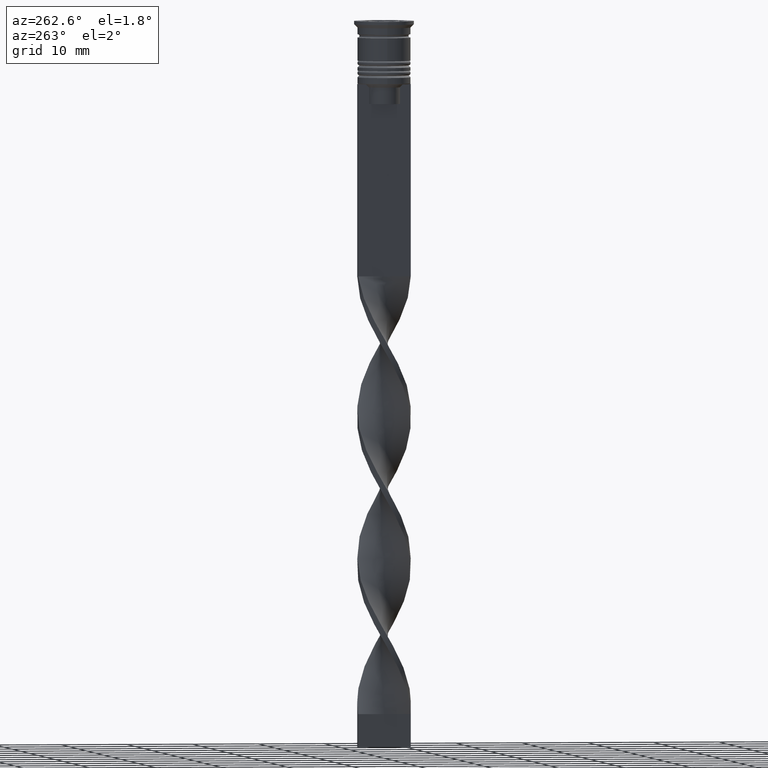
[diagram: clean part render]
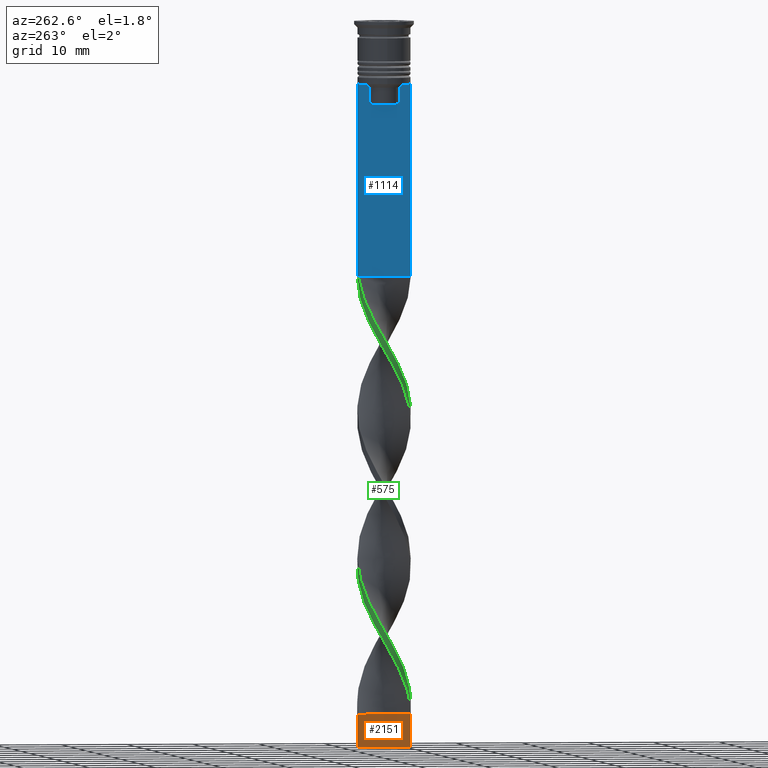
[diagram: same view with three faces highlighted in distinct colors, each labeled with its STEP entity id]
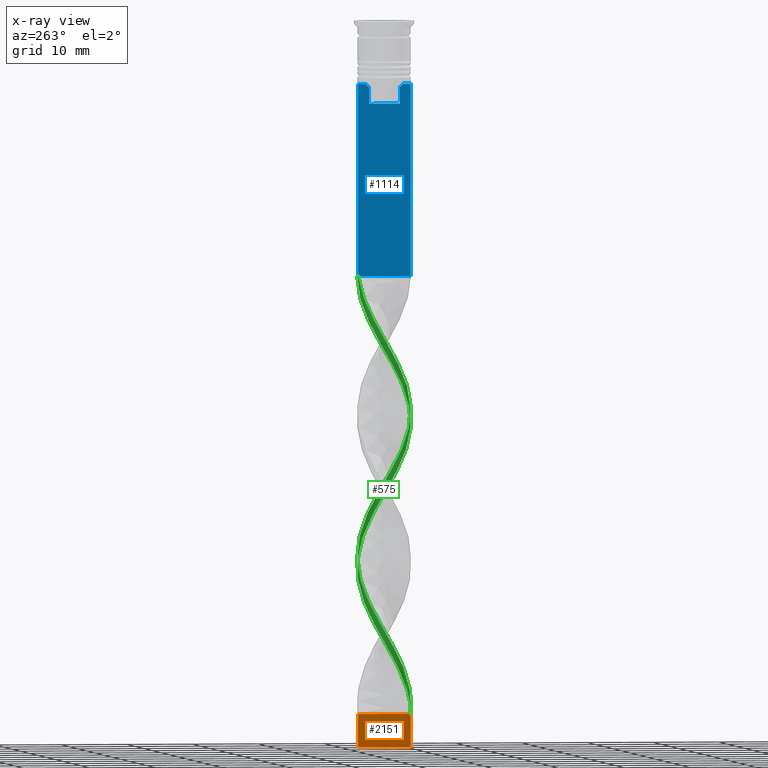
[diagram: x-ray of the same camera — body ghosted, the three highlighted faces saturated]
A machine part, auxiliary view with three faces highlighted in distinct colors.
The next image is the same camera in x-ray (body ghosted, the three faces saturated) — at least one of them is partly hidden behind the body in this view.
Their STEP definitions:

[orange] entity #2151 — the highlighted planar face has unit normal (1, -0, 0).
#92 = CARTESIAN_POINT ( 'NONE',  ( -0.5000000000000005551, -4.000000000000000000, -104.5000000000000142 ) ) ;
#213 = VERTEX_POINT ( 'NONE', #1996 ) ;
#265 = ORIENTED_EDGE ( 'NONE', *, *, #1431, .F. ) ;
#307 = VERTEX_POINT ( 'NONE', #2828 ) ;
#309 = CARTESIAN_POINT ( 'NONE',  ( -0.4999999999999994449, 4.000000000000000000, -104.5000000000000142 ) ) ;
#320 = VERTEX_POINT ( 'NONE', #542 ) ;
#396 = VECTOR ( 'NONE', #2106, 1000.000000000000000 ) ;
#431 = EDGE_LOOP ( 'NONE', ( #608, #265, #2215, #1903 ) ) ;
#542 = CARTESIAN_POINT ( 'NONE',  ( -0.5000000000000005551, -4.000000000000000000, -109.5000000000000142 ) ) ;
#588 = CARTESIAN_POINT ( 'NONE',  ( -0.4999999999999994449, 4.000000000000000000, -109.5000000000000142 ) ) ;
#608 = ORIENTED_EDGE ( 'NONE', *, *, #2924, .T. ) ;
#787 = DIRECTION ( 'NONE',  ( 1.355252715606880543E-16, 1.000000000000000000, 0.000000000000000000 ) ) ;
#1028 = B_SPLINE_CURVE_WITH_KNOTS ( 'NONE', 3,
 ( #92, #1479, #3434, #309 ),
 .UNSPECIFIED., .F., .F.,
 ( 4, 4 ),
 ( 0.000000000000000000, 1.000000000000000000 ),
 .UNSPECIFIED. ) ;
#1038 = CARTESIAN_POINT ( 'NONE',  ( -0.5000000000000005551, -4.000000000000000000, -109.5000000000000142 ) ) ;
#1166 = LINE ( 'NONE', #588, #2837 ) ;
#1269 = EDGE_CURVE ( 'NONE', #320, #2226, #3398, .T. ) ;
#1347 = FACE_OUTER_BOUND ( 'NONE', #431, .T. ) ;
#1431 = EDGE_CURVE ( 'NONE', #2226, #213, #1166, .T. ) ;
#1479 = CARTESIAN_POINT ( 'NONE',  ( -0.5000000000000002220, -1.333333333333333481, -104.5000000000000142 ) ) ;
#1697 = DIRECTION ( 'NONE',  ( -0.000000000000000000, -0.000000000000000000, 1.000000000000000000 ) ) ;
#1732 = AXIS2_PLACEMENT_3D ( 'NONE', #1038, #1915, #787 ) ;
#1903 = ORIENTED_EDGE ( 'NONE', *, *, #3092, .T. ) ;
#1915 = DIRECTION ( 'NONE',  ( 1.000000000000000000, -1.355252715606880543E-16, 0.000000000000000000 ) ) ;
#1996 = CARTESIAN_POINT ( 'NONE',  ( -0.4999999999999994449, 4.000000000000000000, -104.5000000000000142 ) ) ;
#2106 = DIRECTION ( 'NONE',  ( -0.000000000000000000, -0.000000000000000000, 1.000000000000000000 ) ) ;
#2151 = ADVANCED_FACE ( 'NONE', ( #1347 ), #2224, .F. ) ;
#2215 = ORIENTED_EDGE ( 'NONE', *, *, #1269, .F. ) ;
#2224 = PLANE ( 'NONE',  #1732 ) ;
#2226 = VERTEX_POINT ( 'NONE', #2738 ) ;
#2291 = DIRECTION ( 'NONE',  ( 1.355252715606880543E-16, 1.000000000000000000, 0.000000000000000000 ) ) ;
#2388 = LINE ( 'NONE', #3210, #396 ) ;
#2738 = CARTESIAN_POINT ( 'NONE',  ( -0.4999999999999994449, 4.000000000000000000, -109.5000000000000142 ) ) ;
#2828 = CARTESIAN_POINT ( 'NONE',  ( -0.5000000000000005551, -4.000000000000000000, -104.5000000000000142 ) ) ;
#2837 = VECTOR ( 'NONE', #1697, 1000.000000000000000 ) ;
#2924 = EDGE_CURVE ( 'NONE', #307, #213, #1028, .T. ) ;
#3086 = VECTOR ( 'NONE', #2291, 1000.000000000000000 ) ;
#3092 = EDGE_CURVE ( 'NONE', #320, #307, #2388, .T. ) ;
#3210 = CARTESIAN_POINT ( 'NONE',  ( -0.5000000000000005551, -4.000000000000000000, -109.5000000000000142 ) ) ;
#3398 = LINE ( 'NONE', #3451, #3086 ) ;
#3434 = CARTESIAN_POINT ( 'NONE',  ( -0.4999999999999997780, 1.333333333333333481, -104.5000000000000142 ) ) ;
#3451 = CARTESIAN_POINT ( 'NONE',  ( -0.5000000000000005551, -4.000000000000000000, -109.5000000000000142 ) ) ;

[blue] entity #1114 — the highlighted planar face has unit normal (-1, 0, 0).
#57 = LINE ( 'NONE', #852, #1478 ) ;
#59 = DIRECTION ( 'NONE',  ( 0.000000000000000000, 0.000000000000000000, -1.000000000000000000 ) ) ;
#88 = CARTESIAN_POINT ( 'NONE',  ( -0.5000000000000000000, -2.517408374291112416, -9.833662228483172285 ) ) ;
#103 = VERTEX_POINT ( 'NONE', #2762 ) ;
#154 = CARTESIAN_POINT ( 'NONE',  ( -0.5000000000000000000, -4.000000000000000000, -38.50000000000000000 ) ) ;
#343 = LINE ( 'NONE', #1416, #3588 ) ;
#403 = CARTESIAN_POINT ( 'NONE',  ( -0.5000000000000000000, -4.000000000000000000, -9.500000000000000000 ) ) ;
#423 = VERTEX_POINT ( 'NONE', #2054 ) ;
#425 = EDGE_CURVE ( 'NONE', #3550, #3401, #995, .T. ) ;
#429 = DIRECTION ( 'NONE',  ( 0.000000000000000000, -1.000000000000000000, 0.000000000000000000 ) ) ;
#432 = VECTOR ( 'NONE', #2591, 1000.000000000000000 ) ;
#497 = EDGE_CURVE ( 'NONE', #1746, #423, #2191, .T. ) ;
#527 = CARTESIAN_POINT ( 'NONE',  ( -0.5000000000000000000, -4.000000000000000000, -1.437742251701450202 ) ) ;
#567 = ORIENTED_EDGE ( 'NONE', *, *, #1317, .F. ) ;
#590 = DIRECTION ( 'NONE',  ( 0.000000000000000000, 0.000000000000000000, -1.000000000000000000 ) ) ;
#609 = DIRECTION ( 'NONE',  ( -0.000000000000000000, -0.000000000000000000, 1.000000000000000000 ) ) ;
#624 = EDGE_CURVE ( 'NONE', #1508, #1492, #2433, .T. ) ;
#629 = LINE ( 'NONE', #2324, #1308 ) ;
#632 = CARTESIAN_POINT ( 'NONE',  ( -0.5000000000000000000, -2.856571371417138572, -9.500000000000000000 ) ) ;
#637 = CARTESIAN_POINT ( 'NONE',  ( -0.5000000000000000000, 4.000000000000000000, -1.437742251701450202 ) ) ;
#673 = CARTESIAN_POINT ( 'NONE',  ( -0.5000000000000000000, -4.000000000000000000, -9.500000000000000000 ) ) ;
#769 = EDGE_LOOP ( 'NONE', ( #2061, #567, #1808, #2295, #3596, #2302, #1318, #1019, #3074, #1956, #1219, #2117 ) ) ;
#798 = VERTEX_POINT ( 'NONE', #1968 ) ;
#828 = EDGE_CURVE ( 'NONE', #3112, #1492, #1463, .T. ) ;
#852 = CARTESIAN_POINT ( 'NONE',  ( -0.5000000000000000000, -4.000000000000000000, -9.500000000000000000 ) ) ;
#904 = CARTESIAN_POINT ( 'NONE',  ( -0.5000000000000000000, -2.347338918861097135, -10.00000000000000000 ) ) ;
#941 = CARTESIAN_POINT ( 'NONE',  ( -0.5000000000000000000, 2.856571371417138572, -9.500000000000000000 ) ) ;
#971 = VERTEX_POINT ( 'NONE', #2059 ) ;
#995 = B_SPLINE_CURVE_WITH_KNOTS ( 'NONE', 3,
 ( #904, #88, #1170, #632 ),
 .UNSPECIFIED., .F., .F.,
 ( 4, 4 ),
 ( 0.01178336557230038641, 0.01249758354768160454 ),
 .UNSPECIFIED. ) ;
#1016 = FACE_OUTER_BOUND ( 'NONE', #769, .T. ) ;
#1019 = ORIENTED_EDGE ( 'NONE', *, *, #3143, .F. ) ;
#1114 = ADVANCED_FACE ( 'NONE', ( #1016 ), #2144, .T. ) ;
#1170 = CARTESIAN_POINT ( 'NONE',  ( -0.5000000000000000000, -2.687095498514037839, -9.666937905752043037 ) ) ;
#1174 = AXIS2_PLACEMENT_3D ( 'NONE', #527, #2182, #2741 ) ;
#1201 = VECTOR ( 'NONE', #2965, 1000.000000000000000 ) ;
#1210 = CARTESIAN_POINT ( 'NONE',  ( -0.5000000000000000000, 2.347338918861097135, -10.00000000000000000 ) ) ;
#1218 = CARTESIAN_POINT ( 'NONE',  ( -0.5000000000000000000, 2.399999999999996803, -12.50000000000000000 ) ) ;
#1219 = ORIENTED_EDGE ( 'NONE', *, *, #2536, .F. ) ;
#1231 = LINE ( 'NONE', #403, #1804 ) ;
#1308 = VECTOR ( 'NONE', #429, 1000.000000000000000 ) ;
#1317 = EDGE_CURVE ( 'NONE', #2416, #1746, #57, .T. ) ;
#1318 = ORIENTED_EDGE ( 'NONE', *, *, #1586, .F. ) ;
#1376 = CARTESIAN_POINT ( 'NONE',  ( -0.5000000000000000000, 4.000000000000000000, -38.50000000000000000 ) ) ;
#1403 = CARTESIAN_POINT ( 'NONE',  ( -0.5000000000000000000, 2.347338918861097135, 0.000000000000000000 ) ) ;
#1413 = CARTESIAN_POINT ( 'NONE',  ( -0.5000000000000000000, -2.347338918861097135, 0.000000000000000000 ) ) ;
#1416 = CARTESIAN_POINT ( 'NONE',  ( -0.5000000000000000000, -4.000000000000000000, -1.437742251701450202 ) ) ;
#1427 = LINE ( 'NONE', #1218, #3345 ) ;
#1455 = EDGE_CURVE ( 'NONE', #103, #3550, #2824, .T. ) ;
#1463 = LINE ( 'NONE', #637, #432 ) ;
#1478 = VECTOR ( 'NONE', #3174, 1000.000000000000000 ) ;
#1492 = VERTEX_POINT ( 'NONE', #1376 ) ;
#1508 = VERTEX_POINT ( 'NONE', #3219 ) ;
#1586 = EDGE_CURVE ( 'NONE', #971, #2832, #629, .T. ) ;
#1596 = CARTESIAN_POINT ( 'NONE',  ( -0.5000000000000000000, -4.000000000000000000, -9.500000000000000000 ) ) ;
#1746 = VERTEX_POINT ( 'NONE', #2437 ) ;
#1804 = VECTOR ( 'NONE', #2980, 1000.000000000000000 ) ;
#1808 = ORIENTED_EDGE ( 'NONE', *, *, #2810, .F. ) ;
#1898 = VECTOR ( 'NONE', #609, 1000.000000000000000 ) ;
#1956 = ORIENTED_EDGE ( 'NONE', *, *, #1455, .F. ) ;
#1968 = CARTESIAN_POINT ( 'NONE',  ( -0.5000000000000000000, 2.347338918861097135, -12.50000000000000000 ) ) ;
#2023 = DIRECTION ( 'NONE',  ( 0.000000000000000000, -1.000000000000000000, 0.000000000000000000 ) ) ;
#2054 = CARTESIAN_POINT ( 'NONE',  ( -0.5000000000000000000, 2.347338918861097135, -10.00000000000000000 ) ) ;
#2059 = CARTESIAN_POINT ( 'NONE',  ( -0.5000000000000000000, -3.867815921162741422, -9.500000000000000000 ) ) ;
#2061 = ORIENTED_EDGE ( 'NONE', *, *, #497, .F. ) ;
#2111 = LINE ( 'NONE', #673, #1201 ) ;
#2117 = ORIENTED_EDGE ( 'NONE', *, *, #2896, .F. ) ;
#2144 = PLANE ( 'NONE',  #1174 ) ;
#2150 = VECTOR ( 'NONE', #59, 1000.000000000000000 ) ;
#2182 = DIRECTION ( 'NONE',  ( -1.000000000000000000, 0.000000000000000000, 0.000000000000000000 ) ) ;
#2191 = B_SPLINE_CURVE_WITH_KNOTS ( 'NONE', 3,
 ( #941, #3241, #2919, #1210 ),
 .UNSPECIFIED., .F., .F.,
 ( 4, 4 ),
 ( 0.004956812174141195064, 0.005670477137898153989 ),
 .UNSPECIFIED. ) ;
#2271 = CARTESIAN_POINT ( 'NONE',  ( -0.5000000000000000000, -2.856571371417138572, -9.500000000000000000 ) ) ;
#2295 = ORIENTED_EDGE ( 'NONE', *, *, #828, .T. ) ;
#2302 = ORIENTED_EDGE ( 'NONE', *, *, #3481, .F. ) ;
#2324 = CARTESIAN_POINT ( 'NONE',  ( -0.5000000000000000000, -4.000000000000000000, -9.500000000000000000 ) ) ;
#2416 = VERTEX_POINT ( 'NONE', #2547 ) ;
#2433 = LINE ( 'NONE', #154, #2435 ) ;
#2435 = VECTOR ( 'NONE', #3270, 1000.000000000000000 ) ;
#2437 = CARTESIAN_POINT ( 'NONE',  ( -0.5000000000000000000, 2.856571371417138572, -9.500000000000000000 ) ) ;
#2536 = EDGE_CURVE ( 'NONE', #798, #103, #1427, .T. ) ;
#2547 = CARTESIAN_POINT ( 'NONE',  ( -0.5000000000000000000, 3.867815921162741422, -9.500000000000000000 ) ) ;
#2591 = DIRECTION ( 'NONE',  ( 0.000000000000000000, 0.000000000000000000, -1.000000000000000000 ) ) ;
#2741 = DIRECTION ( 'NONE',  ( 0.000000000000000000, 0.000000000000000000, 1.000000000000000000 ) ) ;
#2762 = CARTESIAN_POINT ( 'NONE',  ( -0.5000000000000000000, -2.347338918861097135, -12.50000000000000000 ) ) ;
#2810 = EDGE_CURVE ( 'NONE', #3112, #2416, #2111, .T. ) ;
#2824 = LINE ( 'NONE', #1413, #1898 ) ;
#2831 = LINE ( 'NONE', #1403, #2150 ) ;
#2832 = VERTEX_POINT ( 'NONE', #1596 ) ;
#2896 = EDGE_CURVE ( 'NONE', #423, #798, #2831, .T. ) ;
#2919 = CARTESIAN_POINT ( 'NONE',  ( -0.5000000000000000000, 2.517407211010871393, -9.833663366238582171 ) ) ;
#2923 = CARTESIAN_POINT ( 'NONE',  ( -0.5000000000000000000, 4.000000000000000000, -9.500000000000000000 ) ) ;
#2965 = DIRECTION ( 'NONE',  ( 0.000000000000000000, -1.000000000000000000, 0.000000000000000000 ) ) ;
#2980 = DIRECTION ( 'NONE',  ( 0.000000000000000000, -1.000000000000000000, 0.000000000000000000 ) ) ;
#3074 = ORIENTED_EDGE ( 'NONE', *, *, #425, .F. ) ;
#3112 = VERTEX_POINT ( 'NONE', #2923 ) ;
#3143 = EDGE_CURVE ( 'NONE', #3401, #971, #1231, .T. ) ;
#3174 = DIRECTION ( 'NONE',  ( 0.000000000000000000, -1.000000000000000000, 0.000000000000000000 ) ) ;
#3219 = CARTESIAN_POINT ( 'NONE',  ( -0.5000000000000000000, -4.000000000000000000, -38.50000000000000000 ) ) ;
#3241 = CARTESIAN_POINT ( 'NONE',  ( -0.5000000000000000000, 2.687094542495897631, -9.666938847453439010 ) ) ;
#3270 = DIRECTION ( 'NONE',  ( 0.000000000000000000, 1.000000000000000000, 0.000000000000000000 ) ) ;
#3345 = VECTOR ( 'NONE', #2023, 1000.000000000000000 ) ;
#3401 = VERTEX_POINT ( 'NONE', #2271 ) ;
#3481 = EDGE_CURVE ( 'NONE', #2832, #1508, #343, .T. ) ;
#3545 = CARTESIAN_POINT ( 'NONE',  ( -0.5000000000000000000, -2.347338918861097135, -10.00000000000000000 ) ) ;
#3550 = VERTEX_POINT ( 'NONE', #3545 ) ;
#3588 = VECTOR ( 'NONE', #590, 1000.000000000000000 ) ;
#3596 = ORIENTED_EDGE ( 'NONE', *, *, #624, .F. ) ;

[green] entity #575 — the highlighted face is a freeform B-spline surface patch.
#8 = CARTESIAN_POINT ( 'NONE',  ( 3.575967836940204148, 1.860767053977794072, -75.73076923076924061 ) ) ;
#12 = CARTESIAN_POINT ( 'NONE',  ( -3.801905862948830706, 1.426565947277498525, -90.11538461538462741 ) ) ;
#29 = CARTESIAN_POINT ( 'NONE',  ( -2.703462203165886368, -3.029995166449921840, -56.26923076923076650 ) ) ;
#30 = EDGE_CURVE ( 'NONE', #1061, #1492, #909, .T. ) ;
#47 = CARTESIAN_POINT ( 'NONE',  ( -1.874433786711570571, 3.602232165184604096, -42.73076923076923350 ) ) ;
#53 = EDGE_CURVE ( 'NONE', #1492, #1550, #3033, .T. ) ;
#64 = CARTESIAN_POINT ( 'NONE',  ( 3.350029810931578478, 2.294968160678088953, -76.57692307692306599 ) ) ;
#82 = CARTESIAN_POINT ( 'NONE',  ( -1.874433786711571015, -3.602232165184603652, -100.2692307692307878 ) ) ;
#94 = CARTESIAN_POINT ( 'NONE',  ( -0.5000000000000000000, 4.000000000000000000, -38.50000000000000000 ) ) ;
#100 = CARTESIAN_POINT ( 'NONE',  ( -0.4717917484372050052, 4.003425101847986944, -40.19230769230769340 ) ) ;
#113 = CARTESIAN_POINT ( 'NONE',  ( 3.917367414262926673, -0.9509114268274362347, -68.96153846153846700 ) ) ;
#119 = CARTESIAN_POINT ( 'NONE',  ( -4.029378707462731413, 0.5036723384328416486, -93.49999999999998579 ) ) ;
#131 = CARTESIAN_POINT ( 'NONE',  ( -1.442733565863256961, 3.764109437560429150, -84.19230769230769340 ) ) ;
#136 = CARTESIAN_POINT ( 'NONE',  ( -1.416164675348469126, 3.774185688634723590, -41.88461538461537970 ) ) ;
#149 = CARTESIAN_POINT ( 'NONE',  ( -3.917367414262926673, 0.9509114268274357906, -46.96153846153845990 ) ) ;
#163 = CARTESIAN_POINT ( 'NONE',  ( 2.703462203165885924, -3.029995166449922728, -64.73076923076921219 ) ) ;
#169 = CARTESIAN_POINT ( 'NONE',  ( 3.007903090209048891, 2.683750919871450868, -75.73076923076924061 ) ) ;
#173 = CARTESIAN_POINT ( 'NONE',  ( -0.9578955639853675708, 3.946139212084844416, -85.03846153846153300 ) ) ;
#179 = CARTESIAN_POINT ( 'NONE',  ( -0.01431206711095556715, 4.060710991611130360, -81.65384615384616041 ) ) ;
#194 = CARTESIAN_POINT ( 'NONE',  ( 3.910567156264555422, 0.9785011580703162348, -72.34615384615383959 ) ) ;
#207 = CARTESIAN_POINT ( 'NONE',  ( -4.029378707462731413, 0.5036723384328416486, -93.50000000000000000 ) ) ;
#214 = CARTESIAN_POINT ( 'NONE',  ( -3.917367414262926673, 0.9509114268274357906, -90.96153846153845279 ) ) ;
#229 = CARTESIAN_POINT ( 'NONE',  ( -3.026746007048731979, -2.662481663564005618, -55.42307692307691980 ) ) ;
#245 = CARTESIAN_POINT ( 'NONE',  ( 1.442733565863260736, 3.764109437560427818, -80.80769230769230660 ) ) ;
#260 = CARTESIAN_POINT ( 'NONE',  ( 1.874433786711570127, -3.602232165184604540, -64.73076923076922640 ) ) ;
#278 = CARTESIAN_POINT ( 'NONE',  ( -3.007903090209047559, 2.683750919871451757, -45.26923076923076650 ) ) ;
#281 = CARTESIAN_POINT ( 'NONE',  ( -1.442733565863256961, 3.764109437560429150, -84.19230769230769340 ) ) ;
#297 = CARTESIAN_POINT ( 'NONE',  ( -3.562762527220391107, 1.885927669512850402, -46.96153846153845990 ) ) ;
#307 = VERTEX_POINT ( 'NONE', #2828 ) ;
#316 = CARTESIAN_POINT ( 'NONE',  ( 3.917367414262927561, 0.9509114268274349024, -74.03846153846153300 ) ) ;
#336 = CARTESIAN_POINT ( 'NONE',  ( -1.416164675348469792, -3.774185688634723146, -101.1153846153846132 ) ) ;
#342 = CARTESIAN_POINT ( 'NONE',  ( -0.1666666666666672403, -4.000000000000000000, -104.5000000000000142 ) ) ;
#353 = CARTESIAN_POINT ( 'NONE',  ( 0.9856879328890444381, 3.939289008388870084, -81.65384615384616041 ) ) ;
#366 = CARTESIAN_POINT ( 'NONE',  ( 0.9578955639853693471, 3.946139212084843972, -79.96153846153846700 ) ) ;
#368 = CARTESIAN_POINT ( 'NONE',  ( -3.026746007048731979, -2.662481663564005618, -99.42307692307691980 ) ) ;
#372 = CARTESIAN_POINT ( 'NONE',  ( -3.333769449374405447, -2.318525361317902433, -96.88461538461538680 ) ) ;
#386 = CARTESIAN_POINT ( 'NONE',  ( -2.301620701001678704, 3.309462516590955250, -85.88461538461538680 ) ) ;
#404 = CARTESIAN_POINT ( 'NONE',  ( 4.029378707462731413, 0.5036723384328407604, -71.50000000000001421 ) ) ;
#424 = CARTESIAN_POINT ( 'NONE',  ( -0.5000000000000005551, -4.000000000000000000, -104.5000000000000142 ) ) ;
#439 = CARTESIAN_POINT ( 'NONE',  ( 3.562762527220391551, 1.885927669512849514, -74.03846153846153300 ) ) ;
#444 = CARTESIAN_POINT ( 'NONE',  ( -1.874433786711570571, 3.602232165184604096, -86.73076923076922640 ) ) ;
#453 = CARTESIAN_POINT ( 'NONE',  ( 2.278235258877631786, 3.325604321804800811, -77.42307692307693401 ) ) ;
#468 = CARTESIAN_POINT ( 'NONE',  ( 0.4999999999999994449, -4.000000000000000000, -60.50000000000000000 ) ) ;
#476 = CARTESIAN_POINT ( 'NONE',  ( 0.5000000000000000000, 4.000000000000000000, -38.50000000000000000 ) ) ;
#481 = CARTESIAN_POINT ( 'NONE',  ( -2.278235258877630010, 3.325604321804802588, -87.57692307692308020 ) ) ;
#487 = CARTESIAN_POINT ( 'NONE',  ( -2.682036731043690558, -3.048976478424999303, -54.57692307692308731 ) ) ;
#499 = CARTESIAN_POINT ( 'NONE',  ( -2.278235258877630010, 3.325604321804802588, -43.57692307692307310 ) ) ;
#506 = CARTESIAN_POINT ( 'NONE',  ( -2.278235258877631342, -3.325604321804801256, -55.42307692307691980 ) ) ;
#517 = CARTESIAN_POINT ( 'NONE',  ( -1.899779198837473038, -3.588929866731988660, -57.96153846153846700 ) ) ;
#526 = CARTESIAN_POINT ( 'NONE',  ( 0.01431206711095605461, -4.060710991611130360, -103.6538461538461462 ) ) ;
#530 = CARTESIAN_POINT ( 'NONE',  ( -0.01431206711095876771, -4.060710991611130360, -61.34615384615383249 ) ) ;
#548 = CARTESIAN_POINT ( 'NONE',  ( -4.032828965577023084, -0.4752569063773717239, -95.19230769230769340 ) ) ;
#568 = CARTESIAN_POINT ( 'NONE',  ( -3.350029810931576701, 2.294968160678092506, -44.42307692307691980 ) ) ;
#575 = ADVANCED_FACE ( 'NONE', ( #3521 ), #2789, .T. ) ;
#585 = CARTESIAN_POINT ( 'NONE',  ( 2.682036731043688782, -3.048976478425001524, -66.42307692307694822 ) ) ;
#598 = CARTESIAN_POINT ( 'NONE',  ( -3.575967836940204148, -1.860767053977794516, -97.73076923076922640 ) ) ;
#605 = CARTESIAN_POINT ( 'NONE',  ( -0.01431206711095876771, -4.060710991611130360, -61.34615384615383959 ) ) ;
#623 = CARTESIAN_POINT ( 'NONE',  ( -3.910567156264554534, 0.9785011580703200096, -48.65384615384615330 ) ) ;
#630 = CARTESIAN_POINT ( 'NONE',  ( 0.1666666666666661578, -4.000000000000000000, -104.5000000000000142 ) ) ;
#636 = CARTESIAN_POINT ( 'NONE',  ( 1.442733565863255851, -3.764109437560429594, -62.19230769230769340 ) ) ;
#640 = CARTESIAN_POINT ( 'NONE',  ( 0.01431206711095789688, 4.060710991611130360, -39.34615384615384670 ) ) ;
#652 = CARTESIAN_POINT ( 'NONE',  ( -0.4717917484372064485, -4.003425101847986056, -58.80769230769231370 ) ) ;
#657 = CARTESIAN_POINT ( 'NONE',  ( 0.5000000000000000000, 4.000000000000000000, -38.50000000000000000 ) ) ;
#670 = CARTESIAN_POINT ( 'NONE',  ( 1.874433786711571237, 3.602232165184603652, -78.26923076923077360 ) ) ;
#676 = CARTESIAN_POINT ( 'NONE',  ( -0.9578955639853675708, 3.946139212084843972, -41.03846153846154010 ) ) ;
#689 = CARTESIAN_POINT ( 'NONE',  ( -1.442733565863256961, 3.764109437560429150, -40.19230769230769340 ) ) ;
#692 = EDGE_CURVE ( 'NONE', #1061, #307, #2391, .T. ) ;
#703 = CARTESIAN_POINT ( 'NONE',  ( 4.031103836519878136, 0.01420771602773273322, -70.65384615384614619 ) ) ;
#720 = CARTESIAN_POINT ( 'NONE',  ( -4.032828965577023972, 0.4752569063773721680, -47.80769230769230660 ) ) ;
#725 = CARTESIAN_POINT ( 'NONE',  ( -3.562762527220391551, -1.885927669512849070, -96.03846153846154721 ) ) ;
#731 = CARTESIAN_POINT ( 'NONE',  ( -3.026746007048731979, -2.662481663564005618, -99.42307692307691980 ) ) ;
#741 = CARTESIAN_POINT ( 'NONE',  ( -1.416164675348469792, -3.774185688634723146, -57.11538461538461320 ) ) ;
#754 = CARTESIAN_POINT ( 'NONE',  ( 3.333769449374404115, -2.318525361317905098, -68.11538461538461320 ) ) ;
#759 = CARTESIAN_POINT ( 'NONE',  ( 1.416164675348472235, 3.774185688634722702, -79.11538461538461320 ) ) ;
#764 = CARTESIAN_POINT ( 'NONE',  ( -0.4717917484372064485, -4.003425101847986056, -102.8076923076923208 ) ) ;
#770 = CARTESIAN_POINT ( 'NONE',  ( 0.5000000000000000000, 4.000000000000000000, -82.50000000000000000 ) ) ;
#775 = CARTESIAN_POINT ( 'NONE',  ( 2.301620701001678704, -3.309462516590955250, -63.88461538461538680 ) ) ;
#793 = CARTESIAN_POINT ( 'NONE',  ( -2.703462203165886368, -3.029995166449921840, -56.26923076923076650 ) ) ;
#812 = CARTESIAN_POINT ( 'NONE',  ( -3.562762527220391107, 1.885927669512850402, -90.96153846153845279 ) ) ;
#826 = CARTESIAN_POINT ( 'NONE',  ( 3.562762527220391107, -1.885927669512850846, -68.96153846153846700 ) ) ;
#843 = CARTESIAN_POINT ( 'NONE',  ( -0.9856879328890421066, 3.939289008388870084, -83.34615384615386802 ) ) ;
#849 = CARTESIAN_POINT ( 'NONE',  ( 0.4999999999999994449, -4.000000000000000000, -104.5000000000000142 ) ) ;
#862 = CARTESIAN_POINT ( 'NONE',  ( 3.791755605066377655, -1.453329977707796816, -69.80769230769230660 ) ) ;
#879 = CARTESIAN_POINT ( 'NONE',  ( -4.029378707462731413, 0.5036723384328416486, -49.50000000000000000 ) ) ;
#898 = CARTESIAN_POINT ( 'NONE',  ( 2.703462203165886812, 3.029995166449921840, -78.26923076923075939 ) ) ;
#909 = LINE ( 'NONE', #3177, #2307 ) ;
#910 = CARTESIAN_POINT ( 'NONE',  ( -1.442733565863258516, -3.764109437560428262, -102.8076923076923208 ) ) ;
#915 = CARTESIAN_POINT ( 'NONE',  ( -0.9856879328890439940, -3.939289008388870084, -59.65384615384615330 ) ) ;
#928 = CARTESIAN_POINT ( 'NONE',  ( -1.874433786711570793, -3.602232165184603652, -56.26923076923076650 ) ) ;
#933 = CARTESIAN_POINT ( 'NONE',  ( -3.026746007048731979, -2.662481663564005618, -55.42307692307691980 ) ) ;
#944 = CARTESIAN_POINT ( 'NONE',  ( 3.910567156264555422, 0.9785011580703162348, -72.34615384615383959 ) ) ;
#964 = CARTESIAN_POINT ( 'NONE',  ( -4.032828965577023972, 0.4752569063773721680, -47.80769230769230660 ) ) ;
#970 = CARTESIAN_POINT ( 'NONE',  ( -3.575967836940204148, -1.860767053977794516, -97.73076923076922640 ) ) ;
#981 = CARTESIAN_POINT ( 'NONE',  ( 1.899779198837470373, -3.588929866731989993, -63.03846153846154010 ) ) ;
#991 = CARTESIAN_POINT ( 'NONE',  ( 3.575967836940203703, -1.860767053977795404, -67.26923076923077360 ) ) ;
#996 = CARTESIAN_POINT ( 'NONE',  ( 3.350029810931575813, -2.294968160678093394, -66.42307692307693401 ) ) ;
#1001 = CARTESIAN_POINT ( 'NONE',  ( -3.917367414262927561, -0.9509114268274344584, -96.03846153846154721 ) ) ;
#1009 = CARTESIAN_POINT ( 'NONE',  ( -3.333769449374405447, -2.318525361317902433, -52.88461538461537970 ) ) ;
#1029 = CARTESIAN_POINT ( 'NONE',  ( -4.029378707462731413, -0.5036723384328412045, -49.50000000000000000 ) ) ;
#1041 = CARTESIAN_POINT ( 'NONE',  ( 2.703462203165886812, 3.029995166449921840, -78.26923076923077360 ) ) ;
#1048 = CARTESIAN_POINT ( 'NONE',  ( -3.801905862948830706, 1.426565947277498525, -46.11538461538462741 ) ) ;
#1060 = CARTESIAN_POINT ( 'NONE',  ( -2.682036731043690114, 3.048976478425000636, -44.42307692307692690 ) ) ;
#1061 = VERTEX_POINT ( 'NONE', #476 ) ;
#1080 = CARTESIAN_POINT ( 'NONE',  ( -1.874433786711570349, 3.602232165184604096, -86.73076923076922640 ) ) ;
#1096 = CARTESIAN_POINT ( 'NONE',  ( -2.682036731043690114, 3.048976478425000636, -88.42307692307691980 ) ) ;
#1110 = CARTESIAN_POINT ( 'NONE',  ( -4.029378707462731413, 0.5036723384328416486, -49.50000000000000000 ) ) ;
#1113 = CARTESIAN_POINT ( 'NONE',  ( 3.917367414262926673, -0.9509114268274362347, -68.96153846153846700 ) ) ;
#1127 = EDGE_LOOP ( 'NONE', ( #2004, #2320, #3386, #2459 ) ) ;
#1129 = CARTESIAN_POINT ( 'NONE',  ( 0.4999999999999994449, -4.000000000000000000, -104.5000000000000142 ) ) ;
#1148 = CARTESIAN_POINT ( 'NONE',  ( -3.333769449374405003, 2.318525361317902878, -46.11538461538462741 ) ) ;
#1163 = CARTESIAN_POINT ( 'NONE',  ( 3.026746007048732423, 2.662481663564005174, -77.42307692307693401 ) ) ;
#1183 = CARTESIAN_POINT ( 'NONE',  ( -4.032828965577023084, -0.4752569063773717239, -51.19230769230768630 ) ) ;
#1195 = CARTESIAN_POINT ( 'NONE',  ( -2.278235258877631342, -3.325604321804801256, -55.42307692307691980 ) ) ;
#1203 = CARTESIAN_POINT ( 'NONE',  ( -1.899779198837473038, -3.588929866731988216, -57.96153846153846700 ) ) ;
#1215 = CARTESIAN_POINT ( 'NONE',  ( 3.026746007048730647, -2.662481663564007839, -65.57692307692308020 ) ) ;
#1220 = CARTESIAN_POINT ( 'NONE',  ( -1.442733565863258516, -3.764109437560428262, -102.8076923076923208 ) ) ;
#1232 = CARTESIAN_POINT ( 'NONE',  ( -1.899779198837471705, 3.588929866731989549, -41.03846153846154010 ) ) ;
#1238 = CARTESIAN_POINT ( 'NONE',  ( -4.031103836519878136, 0.01420771602773549663, -94.34615384615385381 ) ) ;
#1253 = CARTESIAN_POINT ( 'NONE',  ( -3.333769449374405447, -2.318525361317902878, -52.88461538461538680 ) ) ;
#1260 = CARTESIAN_POINT ( 'NONE',  ( -2.301620701001679148, -3.309462516590954806, -101.1153846153846132 ) ) ;
#1267 = CARTESIAN_POINT ( 'NONE',  ( -0.9578955639853687920, -3.946139212084844416, -57.96153846153846700 ) ) ;
#1272 = CARTESIAN_POINT ( 'NONE',  ( -1.416164675348469792, -3.774185688634723146, -57.11538461538461320 ) ) ;
#1278 = CARTESIAN_POINT ( 'NONE',  ( -2.682036731043689670, 3.048976478425000636, -88.42307692307693401 ) ) ;
#1283 = CARTESIAN_POINT ( 'NONE',  ( -2.703462203165886368, 3.029995166449922284, -86.73076923076922640 ) ) ;
#1288 = CARTESIAN_POINT ( 'NONE',  ( -3.575967836940203703, 1.860767053977795404, -89.26923076923077360 ) ) ;
#1297 = B_SPLINE_CURVE_WITH_KNOTS ( 'NONE', 3,
 ( #849, #630, #342, #2233 ),
 .UNSPECIFIED., .F., .F.,
 ( 4, 4 ),
 ( 0.000000000000000000, 1.000000000000000000 ),
 .UNSPECIFIED. ) ;
#1304 = CARTESIAN_POINT ( 'NONE',  ( 3.333769449374406335, 2.318525361317901101, -74.88461538461538680 ) ) ;
#1316 = CARTESIAN_POINT ( 'NONE',  ( -3.801905862948830261, -1.426565947277498081, -52.88461538461538680 ) ) ;
#1324 = CARTESIAN_POINT ( 'NONE',  ( -4.032828965577023972, 0.4752569063773721680, -91.80769230769230660 ) ) ;
#1329 = CARTESIAN_POINT ( 'NONE',  ( -1.874433786711570793, -3.602232165184603652, -100.2692307692307878 ) ) ;
#1335 = CARTESIAN_POINT ( 'NONE',  ( 1.416164675348468904, -3.774185688634723590, -63.88461538461538680 ) ) ;
#1350 = CARTESIAN_POINT ( 'NONE',  ( -2.301620701001679148, -3.309462516590954806, -57.11538461538461320 ) ) ;
#1369 = CARTESIAN_POINT ( 'NONE',  ( 4.029378707462731413, -0.5036723384328422037, -71.50000000000001421 ) ) ;
#1376 = CARTESIAN_POINT ( 'NONE',  ( -0.5000000000000000000, 4.000000000000000000, -38.50000000000000000 ) ) ;
#1389 = CARTESIAN_POINT ( 'NONE',  ( 2.278235258877629565, -3.325604321804802588, -65.57692307692308020 ) ) ;
#1391 = CARTESIAN_POINT ( 'NONE',  ( -3.575967836940203703, 1.860767053977795404, -89.26923076923077360 ) ) ;
#1410 = CARTESIAN_POINT ( 'NONE',  ( -3.575967836940204148, -1.860767053977794516, -53.73076923076923350 ) ) ;
#1430 = CARTESIAN_POINT ( 'NONE',  ( 3.801905862948831150, 1.426565947277496083, -74.88461538461538680 ) ) ;
#1450 = CARTESIAN_POINT ( 'NONE',  ( 1.416164675348468904, -3.774185688634723590, -63.88461538461538680 ) ) ;
#1466 = CARTESIAN_POINT ( 'NONE',  ( -3.007903090209048003, -2.683750919871450868, -97.73076923076922640 ) ) ;
#1480 = CARTESIAN_POINT ( 'NONE',  ( 0.4717917484372087800, 4.003425101847986056, -80.80769230769230660 ) ) ;
#1488 = CARTESIAN_POINT ( 'NONE',  ( -4.031103836519878136, 0.01420771602773549663, -50.34615384615384670 ) ) ;
#1492 = VERTEX_POINT ( 'NONE', #1376 ) ;
#1501 = CARTESIAN_POINT ( 'NONE',  ( -2.703462203165886368, 3.029995166449922284, -86.73076923076922640 ) ) ;
#1520 = CARTESIAN_POINT ( 'NONE',  ( -3.791755605066377655, -1.453329977707796816, -51.19230769230768630 ) ) ;
#1536 = DIRECTION ( 'NONE',  ( -1.000000000000000000, 0.000000000000000000, 0.000000000000000000 ) ) ;
#1542 = CARTESIAN_POINT ( 'NONE',  ( -3.801905862948830261, -1.426565947277498081, -96.88461538461538680 ) ) ;
#1550 = VERTEX_POINT ( 'NONE', #3445 ) ;
#1551 = CARTESIAN_POINT ( 'NONE',  ( -0.5000000000000000000, 4.000000000000000000, -38.50000000000000000 ) ) ;
#1555 = CARTESIAN_POINT ( 'NONE',  ( -2.703462203165886368, 3.029995166449922284, -42.73076923076923350 ) ) ;
#1561 = CARTESIAN_POINT ( 'NONE',  ( 0.01431206711095789862, 4.060710991611130360, -39.34615384615384670 ) ) ;
#1569 = CARTESIAN_POINT ( 'NONE',  ( 1.874433786711571459, 3.602232165184603652, -78.26923076923075939 ) ) ;
#1587 = CARTESIAN_POINT ( 'NONE',  ( 1.899779198837470373, -3.588929866731989549, -63.03846153846153300 ) ) ;
#1592 = CARTESIAN_POINT ( 'NONE',  ( -3.350029810931576701, 2.294968160678092506, -88.42307692307691980 ) ) ;
#1599 = CARTESIAN_POINT ( 'NONE',  ( -3.007903090209047559, 2.683750919871451757, -89.26923076923077360 ) ) ;
#1606 = CARTESIAN_POINT ( 'NONE',  ( -3.575967836940203703, 1.860767053977795404, -45.26923076923076650 ) ) ;
#1610 = CARTESIAN_POINT ( 'NONE',  ( -2.682036731043691002, -3.048976478424999303, -98.57692307692310862 ) ) ;
#1618 = CARTESIAN_POINT ( 'NONE',  ( -3.791755605066377655, 1.453329977707797260, -47.80769230769230660 ) ) ;
#1627 = CARTESIAN_POINT ( 'NONE',  ( 3.791755605066378987, 1.453329977707795484, -73.19230769230770761 ) ) ;
#1632 = CARTESIAN_POINT ( 'NONE',  ( -3.333769449374405447, -2.318525361317902878, -96.88461538461538680 ) ) ;
#1639 = CARTESIAN_POINT ( 'NONE',  ( -3.350029810931577590, -2.294968160678091174, -54.57692307692308731 ) ) ;
#1654 = CARTESIAN_POINT ( 'NONE',  ( -4.032828965577023084, -0.4752569063773717239, -51.19230769230768630 ) ) ;
#1672 = CARTESIAN_POINT ( 'NONE',  ( 4.032828965577023972, 0.4752569063773701696, -73.19230769230769340 ) ) ;
#1694 = CARTESIAN_POINT ( 'NONE',  ( -3.562762527220391551, -1.885927669512849070, -96.03846153846154721 ) ) ;
#1709 = CARTESIAN_POINT ( 'NONE',  ( 3.007903090209047559, -2.683750919871451757, -67.26923076923077360 ) ) ;
#1728 = CARTESIAN_POINT ( 'NONE',  ( 1.874433786711570127, -3.602232165184604540, -64.73076923076921219 ) ) ;
#1743 = CARTESIAN_POINT ( 'NONE',  ( -1.899779198837473038, -3.588929866731988660, -101.9615384615384670 ) ) ;
#1747 = CARTESIAN_POINT ( 'NONE',  ( 1.899779198837473482, 3.588929866731988216, -79.96153846153846700 ) ) ;
#1759 = CARTESIAN_POINT ( 'NONE',  ( 2.278235258877631786, 3.325604321804800811, -77.42307692307693401 ) ) ;
#1763 = CARTESIAN_POINT ( 'NONE',  ( -2.682036731043689670, 3.048976478425000636, -44.42307692307691980 ) ) ;
#1777 = CARTESIAN_POINT ( 'NONE',  ( -0.5000000000000000000, 4.000000000000000000, -82.50000000000000000 ) ) ;
#1784 = CARTESIAN_POINT ( 'NONE',  ( -2.278235258877630010, 3.325604321804802588, -87.57692307692308020 ) ) ;
#1799 = CARTESIAN_POINT ( 'NONE',  ( 2.703462203165885924, -3.029995166449922728, -64.73076923076922640 ) ) ;
#1806 = CARTESIAN_POINT ( 'NONE',  ( -0.4717917484372050052, 4.003425101847986944, -84.19230769230769340 ) ) ;
#1816 = CARTESIAN_POINT ( 'NONE',  ( -3.910567156264554534, -0.9785011580703186773, -50.34615384615384670 ) ) ;
#1832 = CARTESIAN_POINT ( 'NONE',  ( 0.4999999999999994449, -4.000000000000000000, -60.50000000000000000 ) ) ;
#1848 = CARTESIAN_POINT ( 'NONE',  ( 0.4717917484372087800, 4.003425101847986056, -80.80769230769230660 ) ) ;
#1852 = CARTESIAN_POINT ( 'NONE',  ( -3.007903090209048003, -2.683750919871450868, -97.73076923076922640 ) ) ;
#1869 = CARTESIAN_POINT ( 'NONE',  ( -0.4717917484372064485, -4.003425101847986056, -58.80769230769231370 ) ) ;
#1880 = CARTESIAN_POINT ( 'NONE',  ( 3.007903090209047559, -2.683750919871451757, -67.26923076923077360 ) ) ;
#1885 = CARTESIAN_POINT ( 'NONE',  ( -0.5000000000000000000, 4.000000000000000000, -82.50000000000000000 ) ) ;
#1897 = CARTESIAN_POINT ( 'NONE',  ( -0.9578955639853675708, 3.946139212084843972, -85.03846153846153300 ) ) ;
#1904 = CARTESIAN_POINT ( 'NONE',  ( 4.031103836519878136, 0.01420771602773273322, -70.65384615384614619 ) ) ;
#1919 = CARTESIAN_POINT ( 'NONE',  ( 2.301620701001681368, 3.309462516590953474, -79.11538461538461320 ) ) ;
#1935 = CARTESIAN_POINT ( 'NONE',  ( -3.791755605066377655, 1.453329977707797260, -91.80769230769230660 ) ) ;
#1950 = CARTESIAN_POINT ( 'NONE',  ( 3.026746007048732423, 2.662481663564005174, -77.42307692307693401 ) ) ;
#1970 = CARTESIAN_POINT ( 'NONE',  ( 3.350029810931575813, -2.294968160678093394, -66.42307692307694822 ) ) ;
#1989 = CARTESIAN_POINT ( 'NONE',  ( 0.9578955639853662385, -3.946139212084844416, -63.03846153846153300 ) ) ;
#2004 = ORIENTED_EDGE ( 'NONE', *, *, #30, .F. ) ;
#2005 = CARTESIAN_POINT ( 'NONE',  ( -3.917367414262927561, -0.9509114268274344584, -52.03846153846154010 ) ) ;
#2020 = CARTESIAN_POINT ( 'NONE',  ( -0.9856879328890441050, -3.939289008388869640, -103.6538461538461462 ) ) ;
#2026 = CARTESIAN_POINT ( 'NONE',  ( 2.301620701001681368, 3.309462516590953474, -79.11538461538461320 ) ) ;
#2034 = CARTESIAN_POINT ( 'NONE',  ( -1.899779198837471705, 3.588929866731989105, -41.03846153846154010 ) ) ;
#2044 = CARTESIAN_POINT ( 'NONE',  ( 0.01431206711095789688, 4.060710991611130360, -83.34615384615386802 ) ) ;
#2058 = CARTESIAN_POINT ( 'NONE',  ( 3.791755605066378987, 1.453329977707795484, -73.19230769230769340 ) ) ;
#2062 = CARTESIAN_POINT ( 'NONE',  ( 4.032828965577023972, 0.4752569063773701696, -73.19230769230770761 ) ) ;
#2090 = CARTESIAN_POINT ( 'NONE',  ( -3.026746007048731091, 2.662481663564006951, -43.57692307692307310 ) ) ;
#2098 = CARTESIAN_POINT ( 'NONE',  ( -0.9856879328890439940, -3.939289008388870084, -103.6538461538461604 ) ) ;
#2108 = CARTESIAN_POINT ( 'NONE',  ( 2.301620701001678704, -3.309462516590955250, -63.88461538461538680 ) ) ;
#2118 = CARTESIAN_POINT ( 'NONE',  ( -1.899779198837471705, 3.588929866731989105, -85.03846153846153300 ) ) ;
#2123 = CARTESIAN_POINT ( 'NONE',  ( 2.682036731043692779, 3.048976478424997527, -76.57692307692306599 ) ) ;
#2131 = CARTESIAN_POINT ( 'NONE',  ( -3.910567156264554534, 0.9785011580703200096, -92.65384615384616041 ) ) ;
#2139 = CARTESIAN_POINT ( 'NONE',  ( -3.007903090209048003, -2.683750919871450868, -53.73076923076923350 ) ) ;
#2149 = CARTESIAN_POINT ( 'NONE',  ( -3.791755605066377655, 1.453329977707797260, -91.80769230769230660 ) ) ;
#2158 = CARTESIAN_POINT ( 'NONE',  ( -3.562762527220391551, -1.885927669512849070, -52.03846153846154010 ) ) ;
#2169 = CARTESIAN_POINT ( 'NONE',  ( 4.031103836519877248, -0.01420771602773772055, -72.34615384615383959 ) ) ;
#2175 = CARTESIAN_POINT ( 'NONE',  ( -3.917367414262926673, 0.9509114268274357906, -46.96153846153845990 ) ) ;
#2180 = CARTESIAN_POINT ( 'NONE',  ( -4.029378707462731413, -0.5036723384328412045, -93.50000000000000000 ) ) ;
#2187 = CARTESIAN_POINT ( 'NONE',  ( 3.350029810931578478, 2.294968160678088509, -76.57692307692306599 ) ) ;
#2201 = CARTESIAN_POINT ( 'NONE',  ( -3.910567156264554534, -0.9785011580703186773, -94.34615384615385381 ) ) ;
#2210 = CARTESIAN_POINT ( 'NONE',  ( -4.031103836519878136, 0.01420771602773549663, -50.34615384615384670 ) ) ;
#2227 = CARTESIAN_POINT ( 'NONE',  ( -1.874433786711570349, 3.602232165184604096, -42.73076923076923350 ) ) ;
#2233 = CARTESIAN_POINT ( 'NONE',  ( -0.5000000000000005551, -4.000000000000000000, -104.5000000000000142 ) ) ;
#2240 = CARTESIAN_POINT ( 'NONE',  ( 0.4717917484372037285, -4.003425101847986944, -62.19230769230769340 ) ) ;
#2243 = CARTESIAN_POINT ( 'NONE',  ( 4.029378707462731413, 0.5036723384328406494, -71.50000000000000000 ) ) ;
#2260 = CARTESIAN_POINT ( 'NONE',  ( -3.350029810931577590, -2.294968160678091618, -54.57692307692308731 ) ) ;
#2280 = CARTESIAN_POINT ( 'NONE',  ( -2.703462203165886368, -3.029995166449921840, -100.2692307692307878 ) ) ;
#2283 = CARTESIAN_POINT ( 'NONE',  ( -3.791755605066377655, 1.453329977707797260, -47.80769230769230660 ) ) ;
#2299 = CARTESIAN_POINT ( 'NONE',  ( 2.278235258877629565, -3.325604321804802588, -65.57692307692308020 ) ) ;
#2307 = VECTOR ( 'NONE', #1536, 1000.000000000000000 ) ;
#2320 = ORIENTED_EDGE ( 'NONE', *, *, #692, .T. ) ;
#2321 = CARTESIAN_POINT ( 'NONE',  ( -2.278235258877631342, -3.325604321804801256, -99.42307692307691980 ) ) ;
#2334 = CARTESIAN_POINT ( 'NONE',  ( 3.801905862948829373, -1.426565947277500745, -68.11538461538461320 ) ) ;
#2341 = CARTESIAN_POINT ( 'NONE',  ( -0.5000000000000005551, -4.000000000000000000, -60.50000000000000000 ) ) ;
#2370 = CARTESIAN_POINT ( 'NONE',  ( -4.029378707462731413, -0.5036723384328412045, -49.50000000000000000 ) ) ;
#2376 = CARTESIAN_POINT ( 'NONE',  ( -3.562762527220391107, 1.885927669512850402, -90.96153846153845279 ) ) ;
#2385 = EDGE_CURVE ( 'NONE', #1550, #307, #1297, .T. ) ;
#2389 = CARTESIAN_POINT ( 'NONE',  ( 0.01431206711095605461, -4.060710991611130360, -59.65384615384615330 ) ) ;
#2391 =( BOUNDED_CURVE ( )  B_SPLINE_CURVE ( 2, ( #2967, #1561, #3217, #676, #136, #2227, #499, #1060, #278, #3590, #3366, #1618, #3068, #1110, #2210, #1654, #2782, #1316, #3053, #1639, #229, #793, #1350, #517, #2800, #2486, #3331, #530, #2240, #2767, #1335, #260, #1389, #2522, #1880, #754, #826, #2749, #2452, #1369, #2169, #1672, #3008, #2505, #8, #2187, #1950, #1041, #1919, #3609, #245, #3311, #770, #3625, #3085, #1897, #3029, #1080, #481, #1096, #1599, #3351, #812, #1935, #2729, #207, #2470, #548, #3647, #2575, #598, #2535, #368, #2280, #3402, #1743, #910, #2020, #3382 ),
 .UNSPECIFIED., .F., .T. ) 
 B_SPLINE_CURVE_WITH_KNOTS ( ( 3, 2, 2, 2, 2, 2, 2, 2, 2, 2, 2, 2, 2, 2, 2, 2, 2, 2, 2, 2, 2, 2, 2, 2, 2, 2, 2, 2, 2, 2, 2, 2, 2, 2, 2, 2, 2, 2, 2, 3 ),
 ( 0.000000000000000000, 0.01923076923076923184, 0.03846153846153846367, 0.05769230769230768857, 0.07692307692307692735, 0.09615384615384615918, 0.1153846153846153771, 0.1346153846153846090, 0.1538461538461538547, 0.1730769230769230449, 0.1923076923076923184, 0.2115384615384615363, 0.2307692307692307543, 0.2500000000000000000, 0.2692307692307692180, 0.2884615384615384359, 0.3076923076923077094, 0.3269230769230769273, 0.3461538461538460898, 0.3653846153846153633, 0.3846153846153846367, 0.4038461538461539102, 0.4230769230769230727, 0.4423076923076922906, 0.4615384615384615086, 0.4807692307692307820, 0.5000000000000000000, 0.5192307692307692735, 0.5384615384615384359, 0.5576923076923077094, 0.5769230769230768718, 0.5961538461538461453, 0.6153846153846154188, 0.6346153846153845812, 0.6538461538461538547, 0.6730769230769230171, 0.6923076923076921796, 0.7115384615384615641, 0.7307692307692307265, 0.7500000000000000000 ),
 .UNSPECIFIED. ) 
 CURVE ( )  GEOMETRIC_REPRESENTATION_ITEM ( )  RATIONAL_B_SPLINE_CURVE ( ( 1.000000000000000000, 0.9927088740980539727, 1.000000000000000000, 0.9927088740980539727, 1.000000000000000000, 0.9927088740980539727, 1.000000000000000000, 0.9927088740980539727, 1.000000000000000000, 0.9927088740980539727, 1.000000000000000000, 0.9927088740980539727, 1.000000000000000000, 0.9927088740980539727, 1.000000000000000000, 0.9927088740980539727, 1.000000000000000000, 0.9927088740980539727, 1.000000000000000000, 0.9927088740980539727, 1.000000000000000000, 0.9927088740980539727, 1.000000000000000000, 0.9927088740980539727, 1.000000000000000000, 0.9927088740980539727, 1.000000000000000000, 0.9927088740980539727, 1.000000000000000000, 0.9927088740980539727, 1.000000000000000000, 0.9927088740980539727, 1.000000000000000000, 0.9927088740980539727, 1.000000000000000000, 0.9927088740980539727, 1.000000000000000000, 0.9927088740980539727, 1.000000000000000000, 0.9927088740980539727, 1.000000000000000000, 0.9927088740980539727, 1.000000000000000000, 0.9927088740980539727, 1.000000000000000000, 0.9927088740980539727, 1.000000000000000000, 0.9927088740980539727, 1.000000000000000000, 0.9927088740980539727, 1.000000000000000000, 0.9927088740980539727, 1.000000000000000000, 0.9927088740980539727, 1.000000000000000000, 0.9927088740980539727, 1.000000000000000000, 0.9927088740980539727, 1.000000000000000000, 0.9927088740980539727, 1.000000000000000000, 0.9927088740980539727, 1.000000000000000000, 0.9927088740980539727, 1.000000000000000000, 0.9927088740980539727, 1.000000000000000000, 0.9927088740980539727, 1.000000000000000000, 0.9927088740980539727, 1.000000000000000000, 0.9927088740980539727, 1.000000000000000000, 0.9927088740980539727, 1.000000000000000000, 0.9927088740980539727, 1.000000000000000000, 0.9927088740980539727, 1.000000000000000000 ) ) 
 REPRESENTATION_ITEM ( '' )  );
#2403 = CARTESIAN_POINT ( 'NONE',  ( 4.032828965577023084, -0.4752569063773718350, -69.80769230769230660 ) ) ;
#2409 = CARTESIAN_POINT ( 'NONE',  ( -3.007903090209048003, -2.683750919871450868, -53.73076923076923350 ) ) ;
#2421 = CARTESIAN_POINT ( 'NONE',  ( -3.026746007048731091, 2.662481663564006951, -87.57692307692308020 ) ) ;
#2441 = CARTESIAN_POINT ( 'NONE',  ( -4.031103836519878136, -0.01420771602773408804, -48.65384615384615330 ) ) ;
#2445 = CARTESIAN_POINT ( 'NONE',  ( -4.032828965577023972, 0.4752569063773721680, -91.80769230769230660 ) ) ;
#2452 = CARTESIAN_POINT ( 'NONE',  ( 3.910567156264554534, -0.9785011580703212308, -70.65384615384614619 ) ) ;
#2459 = ORIENTED_EDGE ( 'NONE', *, *, #53, .F. ) ;
#2460 = CARTESIAN_POINT ( 'NONE',  ( -3.026746007048731091, 2.662481663564006951, -43.57692307692307310 ) ) ;
#2464 = CARTESIAN_POINT ( 'NONE',  ( 0.4999999999999994449, -4.000000000000000000, -104.5000000000000142 ) ) ;
#2470 = CARTESIAN_POINT ( 'NONE',  ( -4.031103836519878136, 0.01420771602773549663, -94.34615384615385381 ) ) ;
#2486 = CARTESIAN_POINT ( 'NONE',  ( -0.9856879328890441050, -3.939289008388869640, -59.65384615384615330 ) ) ;
#2505 = CARTESIAN_POINT ( 'NONE',  ( 3.801905862948831150, 1.426565947277496083, -74.88461538461538680 ) ) ;
#2522 = CARTESIAN_POINT ( 'NONE',  ( 2.682036731043689226, -3.048976478425001524, -66.42307692307693401 ) ) ;
#2524 = CARTESIAN_POINT ( 'NONE',  ( 0.9856879328890411074, -3.939289008388870084, -61.34615384615383959 ) ) ;
#2535 = CARTESIAN_POINT ( 'NONE',  ( -3.350029810931577590, -2.294968160678091174, -98.57692307692310862 ) ) ;
#2540 = CARTESIAN_POINT ( 'NONE',  ( -3.007903090209047559, 2.683750919871451757, -45.26923076923076650 ) ) ;
#2559 = CARTESIAN_POINT ( 'NONE',  ( -1.416164675348469126, 3.774185688634723590, -41.88461538461537970 ) ) ;
#2575 = CARTESIAN_POINT ( 'NONE',  ( -3.801905862948830261, -1.426565947277498081, -96.88461538461538680 ) ) ;
#2578 = CARTESIAN_POINT ( 'NONE',  ( 3.575967836940204148, 1.860767053977794072, -75.73076923076924061 ) ) ;
#2594 = CARTESIAN_POINT ( 'NONE',  ( 0.5000000000000000000, 4.000000000000000000, -82.50000000000000000 ) ) ;
#2610 = CARTESIAN_POINT ( 'NONE',  ( -0.9856879328890421066, 3.939289008388869640, -39.34615384615384670 ) ) ;
#2615 = CARTESIAN_POINT ( 'NONE',  ( 3.562762527220391107, -1.885927669512850846, -68.96153846153846700 ) ) ;
#2630 = CARTESIAN_POINT ( 'NONE',  ( -3.026746007048731091, 2.662481663564006951, -87.57692307692308020 ) ) ;
#2649 = CARTESIAN_POINT ( 'NONE',  ( -0.9856879328890421066, 3.939289008388869640, -83.34615384615386802 ) ) ;
#2668 = CARTESIAN_POINT ( 'NONE',  ( -3.575967836940203703, 1.860767053977795404, -45.26923076923076650 ) ) ;
#2683 = CARTESIAN_POINT ( 'NONE',  ( -0.9856879328890421066, 3.939289008388870084, -39.34615384615384670 ) ) ;
#2688 = CARTESIAN_POINT ( 'NONE',  ( 3.333769449374406335, 2.318525361317901101, -74.88461538461538680 ) ) ;
#2695 = CARTESIAN_POINT ( 'NONE',  ( -3.007903090209047559, 2.683750919871451757, -89.26923076923077360 ) ) ;
#2700 = CARTESIAN_POINT ( 'NONE',  ( -2.301620701001678704, 3.309462516590955250, -85.88461538461538680 ) ) ;
#2705 = CARTESIAN_POINT ( 'NONE',  ( -1.416164675348469792, -3.774185688634723146, -101.1153846153846132 ) ) ;
#2716 = CARTESIAN_POINT ( 'NONE',  ( 3.801905862948829373, -1.426565947277500745, -68.11538461538462741 ) ) ;
#2729 = CARTESIAN_POINT ( 'NONE',  ( -3.910567156264554534, 0.9785011580703200096, -92.65384615384616041 ) ) ;
#2736 = CARTESIAN_POINT ( 'NONE',  ( 0.01431206711095605461, -4.060710991611130360, -59.65384615384615330 ) ) ;
#2749 = CARTESIAN_POINT ( 'NONE',  ( 3.791755605066377655, -1.453329977707796816, -69.80769230769230660 ) ) ;
#2757 = CARTESIAN_POINT ( 'NONE',  ( 0.9578955639853692361, 3.946139212084844416, -79.96153846153846700 ) ) ;
#2767 = CARTESIAN_POINT ( 'NONE',  ( 0.9578955639853662385, -3.946139212084843972, -63.03846153846154010 ) ) ;
#2782 = CARTESIAN_POINT ( 'NONE',  ( -3.917367414262927561, -0.9509114268274344584, -52.03846153846154010 ) ) ;
#2789 =( BOUNDED_SURFACE ( )  B_SPLINE_SURFACE ( 1, 2, ( 
 ( #1551, #2683, #3449, #2034, #2881, #3557, #2460, #568, #1606, #1048, #2175, #720, #2441, #1029, #3278, #2996, #2158, #1009, #2139, #487, #506, #3539, #741, #1267, #1869, #2736, #468, #2524, #3316, #1587, #775, #163, #3257, #1970, #991, #2716, #1113, #2403, #1904, #2243, #194, #1627, #2976, #1304, #3578, #3299, #453, #1569, #759, #2757, #1848, #179, #1885, #843, #281, #2118, #2700, #1283, #2421, #3014, #1391, #12, #214, #1324, #3597, #3109, #3039, #3387, #1694, #372, #1466, #2821, #2321, #82, #336, #3424, #3198, #3182, #1129 ),
 ( #657, #640, #100, #3127, #2559, #47, #3163, #1763, #2540, #1148, #297, #2283, #623, #879, #1488, #1183, #2005, #3461, #1410, #2260, #933, #29, #3146, #1203, #3406, #915, #2341, #605, #2891, #1989, #1450, #1728, #2299, #585, #1709, #2854, #2615, #862, #2838, #3441, #3480, #2062, #316, #1430, #2578, #64, #1163, #898, #2026, #1747, #2873, #353, #2594, #2044, #1806, #173, #2989, #444, #1784, #1278, #2695, #2948, #2376, #2149, #2131, #119, #1238, #3570, #1001, #1542, #970, #3290, #731, #3250, #1260, #2932, #1220, #2098, #424 ) ),
 .UNSPECIFIED., .F., .F., .F. ) 
 B_SPLINE_SURFACE_WITH_KNOTS ( ( 2, 2 ),
 ( 3, 2, 2, 2, 2, 2, 2, 2, 2, 2, 2, 2, 2, 2, 2, 2, 2, 2, 2, 2, 2, 2, 2, 2, 2, 2, 2, 2, 2, 2, 2, 2, 2, 2, 2, 2, 2, 2, 2, 3 ),
 ( 0.000000000000000000, 1.000000000000000000 ),
 ( 0.000000000000000000, 0.01923076923076923184, 0.03846153846153846367, 0.05769230769230769551, 0.07692307692307692735, 0.09615384615384615918, 0.1153846153846153910, 0.1346153846153846090, 0.1538461538461538547, 0.1730769230769230727, 0.1923076923076923184, 0.2115384615384615363, 0.2307692307692307820, 0.2500000000000000000, 0.2692307692307692180, 0.2884615384615384359, 0.3076923076923077094, 0.3269230769230769273, 0.3461538461538461453, 0.3653846153846153633, 0.3846153846153846367, 0.4038461538461538547, 0.4230769230769230727, 0.4423076923076922906, 0.4615384615384615641, 0.4807692307692307820, 0.5000000000000000000, 0.5192307692307692735, 0.5384615384615384359, 0.5576923076923077094, 0.5769230769230768718, 0.5961538461538461453, 0.6153846153846154188, 0.6346153846153845812, 0.6538461538461538547, 0.6730769230769231282, 0.6923076923076922906, 0.7115384615384615641, 0.7307692307692307265, 0.7500000000000000000 ),
 .UNSPECIFIED. ) 
 GEOMETRIC_REPRESENTATION_ITEM ( )  RATIONAL_B_SPLINE_SURFACE ( (
 ( 1.000000000000000000, 0.9927088740980539727, 1.000000000000000000, 0.9927088740980539727, 1.000000000000000000, 0.9927088740980539727, 1.000000000000000000, 0.9927088740980539727, 1.000000000000000000, 0.9927088740980539727, 1.000000000000000000, 0.9927088740980539727, 1.000000000000000000, 0.9927088740980539727, 1.000000000000000000, 0.9927088740980539727, 1.000000000000000000, 0.9927088740980539727, 1.000000000000000000, 0.9927088740980539727, 1.000000000000000000, 0.9927088740980539727, 1.000000000000000000, 0.9927088740980539727, 1.000000000000000000, 0.9927088740980539727, 1.000000000000000000, 0.9927088740980539727, 1.000000000000000000, 0.9927088740980539727, 1.000000000000000000, 0.9927088740980539727, 1.000000000000000000, 0.9927088740980539727, 1.000000000000000000, 0.9927088740980539727, 1.000000000000000000, 0.9927088740980539727, 1.000000000000000000, 0.9927088740980539727, 1.000000000000000000, 0.9927088740980539727, 1.000000000000000000, 0.9927088740980539727, 1.000000000000000000, 0.9927088740980539727, 1.000000000000000000, 0.9927088740980539727, 1.000000000000000000, 0.9927088740980539727, 1.000000000000000000, 0.9927088740980539727, 1.000000000000000000, 0.9927088740980539727, 1.000000000000000000, 0.9927088740980539727, 1.000000000000000000, 0.9927088740980539727, 1.000000000000000000, 0.9927088740980539727, 1.000000000000000000, 0.9927088740980539727, 1.000000000000000000, 0.9927088740980539727, 1.000000000000000000, 0.9927088740980539727, 1.000000000000000000, 0.9927088740980539727, 1.000000000000000000, 0.9927088740980539727, 1.000000000000000000, 0.9927088740980539727, 1.000000000000000000, 0.9927088740980539727, 1.000000000000000000, 0.9927088740980539727, 1.000000000000000000, 0.9927088740980539727, 1.000000000000000000),
 ( 1.000000000000000000, 0.9927088740980539727, 1.000000000000000000, 0.9927088740980539727, 1.000000000000000000, 0.9927088740980539727, 1.000000000000000000, 0.9927088740980539727, 1.000000000000000000, 0.9927088740980539727, 1.000000000000000000, 0.9927088740980539727, 1.000000000000000000, 0.9927088740980539727, 1.000000000000000000, 0.9927088740980539727, 1.000000000000000000, 0.9927088740980539727, 1.000000000000000000, 0.9927088740980539727, 1.000000000000000000, 0.9927088740980539727, 1.000000000000000000, 0.9927088740980539727, 1.000000000000000000, 0.9927088740980539727, 1.000000000000000000, 0.9927088740980539727, 1.000000000000000000, 0.9927088740980539727, 1.000000000000000000, 0.9927088740980539727, 1.000000000000000000, 0.9927088740980539727, 1.000000000000000000, 0.9927088740980539727, 1.000000000000000000, 0.9927088740980539727, 1.000000000000000000, 0.9927088740980539727, 1.000000000000000000, 0.9927088740980539727, 1.000000000000000000, 0.9927088740980539727, 1.000000000000000000, 0.9927088740980539727, 1.000000000000000000, 0.9927088740980539727, 1.000000000000000000, 0.9927088740980539727, 1.000000000000000000, 0.9927088740980539727, 1.000000000000000000, 0.9927088740980539727, 1.000000000000000000, 0.9927088740980539727, 1.000000000000000000, 0.9927088740980539727, 1.000000000000000000, 0.9927088740980539727, 1.000000000000000000, 0.9927088740980539727, 1.000000000000000000, 0.9927088740980539727, 1.000000000000000000, 0.9927088740980539727, 1.000000000000000000, 0.9927088740980539727, 1.000000000000000000, 0.9927088740980539727, 1.000000000000000000, 0.9927088740980539727, 1.000000000000000000, 0.9927088740980539727, 1.000000000000000000, 0.9927088740980539727, 1.000000000000000000, 0.9927088740980539727, 1.000000000000000000) ) ) 
 REPRESENTATION_ITEM ( '' )  SURFACE ( )  );
#2800 = CARTESIAN_POINT ( 'NONE',  ( -1.442733565863258516, -3.764109437560428262, -58.80769230769231370 ) ) ;
#2821 = CARTESIAN_POINT ( 'NONE',  ( -2.682036731043690558, -3.048976478424999303, -98.57692307692310862 ) ) ;
#2828 = CARTESIAN_POINT ( 'NONE',  ( -0.5000000000000005551, -4.000000000000000000, -104.5000000000000142 ) ) ;
#2838 = CARTESIAN_POINT ( 'NONE',  ( 3.910567156264554534, -0.9785011580703212308, -70.65384615384614619 ) ) ;
#2854 = CARTESIAN_POINT ( 'NONE',  ( 3.333769449374404559, -2.318525361317904654, -68.11538461538462741 ) ) ;
#2873 = CARTESIAN_POINT ( 'NONE',  ( 1.442733565863260736, 3.764109437560427818, -80.80769230769230660 ) ) ;
#2881 = CARTESIAN_POINT ( 'NONE',  ( -2.301620701001678704, 3.309462516590955250, -41.88461538461537970 ) ) ;
#2886 = CARTESIAN_POINT ( 'NONE',  ( 1.416164675348472235, 3.774185688634722702, -79.11538461538461320 ) ) ;
#2891 = CARTESIAN_POINT ( 'NONE',  ( 0.4717917484372037285, -4.003425101847986944, -62.19230769230769340 ) ) ;
#2906 = CARTESIAN_POINT ( 'NONE',  ( -1.899779198837471705, 3.588929866731989549, -85.03846153846153300 ) ) ;
#2925 = CARTESIAN_POINT ( 'NONE',  ( -3.801905862948830706, 1.426565947277498525, -46.11538461538462030 ) ) ;
#2932 = CARTESIAN_POINT ( 'NONE',  ( -1.899779198837473038, -3.588929866731988216, -101.9615384615384670 ) ) ;
#2942 = CARTESIAN_POINT ( 'NONE',  ( -3.562762527220391551, -1.885927669512849070, -52.03846153846154010 ) ) ;
#2948 = CARTESIAN_POINT ( 'NONE',  ( -3.333769449374405003, 2.318525361317902878, -90.11538461538462741 ) ) ;
#2961 = CARTESIAN_POINT ( 'NONE',  ( -2.682036731043691002, -3.048976478424999303, -54.57692307692308731 ) ) ;
#2967 = CARTESIAN_POINT ( 'NONE',  ( 0.5000000000000000000, 4.000000000000000000, -38.50000000000000000 ) ) ;
#2976 = CARTESIAN_POINT ( 'NONE',  ( 3.562762527220391551, 1.885927669512849514, -74.03846153846153300 ) ) ;
#2981 = CARTESIAN_POINT ( 'NONE',  ( -2.278235258877631342, -3.325604321804801256, -99.42307692307691980 ) ) ;
#2989 = CARTESIAN_POINT ( 'NONE',  ( -1.416164675348469126, 3.774185688634723590, -85.88461538461538680 ) ) ;
#2996 = CARTESIAN_POINT ( 'NONE',  ( -3.791755605066377655, -1.453329977707796816, -51.19230769230768630 ) ) ;
#3008 = CARTESIAN_POINT ( 'NONE',  ( 3.917367414262927561, 0.9509114268274349024, -74.03846153846153300 ) ) ;
#3014 = CARTESIAN_POINT ( 'NONE',  ( -3.350029810931576701, 2.294968160678092506, -88.42307692307693401 ) ) ;
#3020 = CARTESIAN_POINT ( 'NONE',  ( -4.031103836519878136, -0.01420771602773408804, -92.65384615384616041 ) ) ;
#3029 = CARTESIAN_POINT ( 'NONE',  ( -1.416164675348469126, 3.774185688634723590, -85.88461538461538680 ) ) ;
#3033 =( BOUNDED_CURVE ( )  B_SPLINE_CURVE ( 2, ( #94, #2610, #689, #1232, #3474, #1555, #2090, #3229, #2668, #2925, #149, #964, #3492, #2370, #1816, #1520, #2942, #1253, #2409, #2961, #1195, #928, #1272, #3211, #652, #2389, #1832, #3528, #636, #981, #2108, #1799, #1215, #996, #3245, #2334, #113, #3544, #703, #404, #944, #2058, #439, #2688, #169, #2123, #1759, #670, #2886, #366, #1480, #3194, #1777, #2649, #131, #2906, #386, #1501, #2630, #1592, #1288, #3263, #3638, #2445, #3020, #2180, #2201, #3583, #725, #1632, #1852, #1610, #2981, #1329, #2705, #3304, #764, #526, #2464 ),
 .UNSPECIFIED., .F., .T. ) 
 B_SPLINE_CURVE_WITH_KNOTS ( ( 3, 2, 2, 2, 2, 2, 2, 2, 2, 2, 2, 2, 2, 2, 2, 2, 2, 2, 2, 2, 2, 2, 2, 2, 2, 2, 2, 2, 2, 2, 2, 2, 2, 2, 2, 2, 2, 2, 2, 3 ),
 ( 0.000000000000000000, 0.01923076923076923184, 0.03846153846153846367, 0.05769230769230768857, 0.07692307692307692735, 0.09615384615384615918, 0.1153846153846153771, 0.1346153846153846090, 0.1538461538461538547, 0.1730769230769230449, 0.1923076923076923184, 0.2115384615384615363, 0.2307692307692307543, 0.2500000000000000000, 0.2692307692307692180, 0.2884615384615384359, 0.3076923076923077094, 0.3269230769230769273, 0.3461538461538460898, 0.3653846153846153633, 0.3846153846153846367, 0.4038461538461539102, 0.4230769230769230727, 0.4423076923076922906, 0.4615384615384615086, 0.4807692307692307820, 0.5000000000000000000, 0.5192307692307692735, 0.5384615384615384359, 0.5576923076923077094, 0.5769230769230768718, 0.5961538461538461453, 0.6153846153846154188, 0.6346153846153845812, 0.6538461538461538547, 0.6730769230769230171, 0.6923076923076921796, 0.7115384615384615641, 0.7307692307692307265, 0.7500000000000000000 ),
 .UNSPECIFIED. ) 
 CURVE ( )  GEOMETRIC_REPRESENTATION_ITEM ( )  RATIONAL_B_SPLINE_CURVE ( ( 1.000000000000000000, 0.9927088740980539727, 1.000000000000000000, 0.9927088740980539727, 1.000000000000000000, 0.9927088740980539727, 1.000000000000000000, 0.9927088740980539727, 1.000000000000000000, 0.9927088740980539727, 1.000000000000000000, 0.9927088740980539727, 1.000000000000000000, 0.9927088740980539727, 1.000000000000000000, 0.9927088740980539727, 1.000000000000000000, 0.9927088740980539727, 1.000000000000000000, 0.9927088740980539727, 1.000000000000000000, 0.9927088740980539727, 1.000000000000000000, 0.9927088740980539727, 1.000000000000000000, 0.9927088740980539727, 1.000000000000000000, 0.9927088740980539727, 1.000000000000000000, 0.9927088740980539727, 1.000000000000000000, 0.9927088740980539727, 1.000000000000000000, 0.9927088740980539727, 1.000000000000000000, 0.9927088740980539727, 1.000000000000000000, 0.9927088740980539727, 1.000000000000000000, 0.9927088740980539727, 1.000000000000000000, 0.9927088740980539727, 1.000000000000000000, 0.9927088740980539727, 1.000000000000000000, 0.9927088740980539727, 1.000000000000000000, 0.9927088740980539727, 1.000000000000000000, 0.9927088740980539727, 1.000000000000000000, 0.9927088740980539727, 1.000000000000000000, 0.9927088740980539727, 1.000000000000000000, 0.9927088740980539727, 1.000000000000000000, 0.9927088740980539727, 1.000000000000000000, 0.9927088740980539727, 1.000000000000000000, 0.9927088740980539727, 1.000000000000000000, 0.9927088740980539727, 1.000000000000000000, 0.9927088740980539727, 1.000000000000000000, 0.9927088740980539727, 1.000000000000000000, 0.9927088740980539727, 1.000000000000000000, 0.9927088740980539727, 1.000000000000000000, 0.9927088740980539727, 1.000000000000000000, 0.9927088740980539727, 1.000000000000000000, 0.9927088740980539727, 1.000000000000000000 ) ) 
 REPRESENTATION_ITEM ( '' )  );
#3039 = CARTESIAN_POINT ( 'NONE',  ( -3.910567156264554534, -0.9785011580703186773, -94.34615384615385381 ) ) ;
#3053 = CARTESIAN_POINT ( 'NONE',  ( -3.575967836940204148, -1.860767053977794516, -53.73076923076923350 ) ) ;
#3068 = CARTESIAN_POINT ( 'NONE',  ( -3.910567156264554534, 0.9785011580703200096, -48.65384615384615330 ) ) ;
#3085 = CARTESIAN_POINT ( 'NONE',  ( -0.4717917484372050052, 4.003425101847986944, -84.19230769230769340 ) ) ;
#3109 = CARTESIAN_POINT ( 'NONE',  ( -4.029378707462731413, -0.5036723384328412045, -93.49999999999998579 ) ) ;
#3127 = CARTESIAN_POINT ( 'NONE',  ( -0.9578955639853675708, 3.946139212084844416, -41.03846153846154010 ) ) ;
#3146 = CARTESIAN_POINT ( 'NONE',  ( -2.301620701001679148, -3.309462516590954806, -57.11538461538461320 ) ) ;
#3163 = CARTESIAN_POINT ( 'NONE',  ( -2.278235258877630010, 3.325604321804802588, -43.57692307692307310 ) ) ;
#3177 = CARTESIAN_POINT ( 'NONE',  ( 0.5000000000000000000, 4.000000000000000000, -38.50000000000000000 ) ) ;
#3182 = CARTESIAN_POINT ( 'NONE',  ( 0.01431206711095605461, -4.060710991611130360, -103.6538461538461604 ) ) ;
#3194 = CARTESIAN_POINT ( 'NONE',  ( -0.01431206711095556715, 4.060710991611130360, -81.65384615384616041 ) ) ;
#3198 = CARTESIAN_POINT ( 'NONE',  ( -0.4717917484372064485, -4.003425101847986056, -102.8076923076923208 ) ) ;
#3211 = CARTESIAN_POINT ( 'NONE',  ( -0.9578955639853689030, -3.946139212084843972, -57.96153846153846700 ) ) ;
#3217 = CARTESIAN_POINT ( 'NONE',  ( -0.4717917484372050052, 4.003425101847986944, -40.19230769230769340 ) ) ;
#3229 = CARTESIAN_POINT ( 'NONE',  ( -3.350029810931576701, 2.294968160678092506, -44.42307692307692690 ) ) ;
#3245 = CARTESIAN_POINT ( 'NONE',  ( 3.575967836940203703, -1.860767053977795404, -67.26923076923077360 ) ) ;
#3250 = CARTESIAN_POINT ( 'NONE',  ( -2.703462203165886368, -3.029995166449921840, -100.2692307692307878 ) ) ;
#3257 = CARTESIAN_POINT ( 'NONE',  ( 3.026746007048730647, -2.662481663564007839, -65.57692307692308020 ) ) ;
#3263 = CARTESIAN_POINT ( 'NONE',  ( -3.801905862948830706, 1.426565947277498525, -90.11538461538462741 ) ) ;
#3278 = CARTESIAN_POINT ( 'NONE',  ( -3.910567156264554534, -0.9785011580703186773, -50.34615384615384670 ) ) ;
#3290 = CARTESIAN_POINT ( 'NONE',  ( -3.350029810931577590, -2.294968160678091618, -98.57692307692310862 ) ) ;
#3299 = CARTESIAN_POINT ( 'NONE',  ( 2.682036731043692335, 3.048976478424997527, -76.57692307692306599 ) ) ;
#3304 = CARTESIAN_POINT ( 'NONE',  ( -0.9578955639853689030, -3.946139212084843972, -101.9615384615384670 ) ) ;
#3311 = CARTESIAN_POINT ( 'NONE',  ( 0.9856879328890445491, 3.939289008388869640, -81.65384615384616041 ) ) ;
#3316 = CARTESIAN_POINT ( 'NONE',  ( 1.442733565863255851, -3.764109437560429594, -62.19230769230769340 ) ) ;
#3331 = CARTESIAN_POINT ( 'NONE',  ( -0.5000000000000005551, -4.000000000000000000, -60.50000000000000000 ) ) ;
#3351 = CARTESIAN_POINT ( 'NONE',  ( -3.333769449374404559, 2.318525361317903322, -90.11538461538462741 ) ) ;
#3366 = CARTESIAN_POINT ( 'NONE',  ( -3.562762527220391107, 1.885927669512850402, -46.96153846153845990 ) ) ;
#3382 = CARTESIAN_POINT ( 'NONE',  ( -0.5000000000000005551, -4.000000000000000000, -104.5000000000000142 ) ) ;
#3386 = ORIENTED_EDGE ( 'NONE', *, *, #2385, .F. ) ;
#3387 = CARTESIAN_POINT ( 'NONE',  ( -3.791755605066377655, -1.453329977707796816, -95.19230769230769340 ) ) ;
#3402 = CARTESIAN_POINT ( 'NONE',  ( -2.301620701001679148, -3.309462516590954806, -101.1153846153846132 ) ) ;
#3406 = CARTESIAN_POINT ( 'NONE',  ( -1.442733565863258516, -3.764109437560428262, -58.80769230769231370 ) ) ;
#3424 = CARTESIAN_POINT ( 'NONE',  ( -0.9578955639853687920, -3.946139212084844416, -101.9615384615384670 ) ) ;
#3441 = CARTESIAN_POINT ( 'NONE',  ( 4.029378707462731413, -0.5036723384328422037, -71.50000000000000000 ) ) ;
#3445 = CARTESIAN_POINT ( 'NONE',  ( 0.4999999999999994449, -4.000000000000000000, -104.5000000000000142 ) ) ;
#3449 = CARTESIAN_POINT ( 'NONE',  ( -1.442733565863256961, 3.764109437560429150, -40.19230769230769340 ) ) ;
#3461 = CARTESIAN_POINT ( 'NONE',  ( -3.801905862948830261, -1.426565947277498081, -52.88461538461537970 ) ) ;
#3474 = CARTESIAN_POINT ( 'NONE',  ( -2.301620701001678704, 3.309462516590955250, -41.88461538461537970 ) ) ;
#3480 = CARTESIAN_POINT ( 'NONE',  ( 4.031103836519877248, -0.01420771602773772055, -72.34615384615383959 ) ) ;
#3492 = CARTESIAN_POINT ( 'NONE',  ( -4.031103836519878136, -0.01420771602773408804, -48.65384615384615330 ) ) ;
#3521 = FACE_OUTER_BOUND ( 'NONE', #1127, .T. ) ;
#3528 = CARTESIAN_POINT ( 'NONE',  ( 0.9856879328890412184, -3.939289008388869640, -61.34615384615383249 ) ) ;
#3539 = CARTESIAN_POINT ( 'NONE',  ( -1.874433786711571015, -3.602232165184603652, -56.26923076923076650 ) ) ;
#3544 = CARTESIAN_POINT ( 'NONE',  ( 4.032828965577023084, -0.4752569063773718350, -69.80769230769230660 ) ) ;
#3557 = CARTESIAN_POINT ( 'NONE',  ( -2.703462203165886368, 3.029995166449922284, -42.73076923076923350 ) ) ;
#3570 = CARTESIAN_POINT ( 'NONE',  ( -4.032828965577023084, -0.4752569063773717239, -95.19230769230769340 ) ) ;
#3578 = CARTESIAN_POINT ( 'NONE',  ( 3.007903090209048891, 2.683750919871450868, -75.73076923076924061 ) ) ;
#3583 = CARTESIAN_POINT ( 'NONE',  ( -3.791755605066377655, -1.453329977707796816, -95.19230769230769340 ) ) ;
#3590 = CARTESIAN_POINT ( 'NONE',  ( -3.333769449374404559, 2.318525361317903322, -46.11538461538462030 ) ) ;
#3597 = CARTESIAN_POINT ( 'NONE',  ( -4.031103836519878136, -0.01420771602773408804, -92.65384615384616041 ) ) ;
#3609 = CARTESIAN_POINT ( 'NONE',  ( 1.899779198837473482, 3.588929866731988660, -79.96153846153846700 ) ) ;
#3625 = CARTESIAN_POINT ( 'NONE',  ( 0.01431206711095789862, 4.060710991611130360, -83.34615384615386802 ) ) ;
#3638 = CARTESIAN_POINT ( 'NONE',  ( -3.917367414262926673, 0.9509114268274357906, -90.96153846153845279 ) ) ;
#3647 = CARTESIAN_POINT ( 'NONE',  ( -3.917367414262927561, -0.9509114268274344584, -96.03846153846154721 ) ) ;